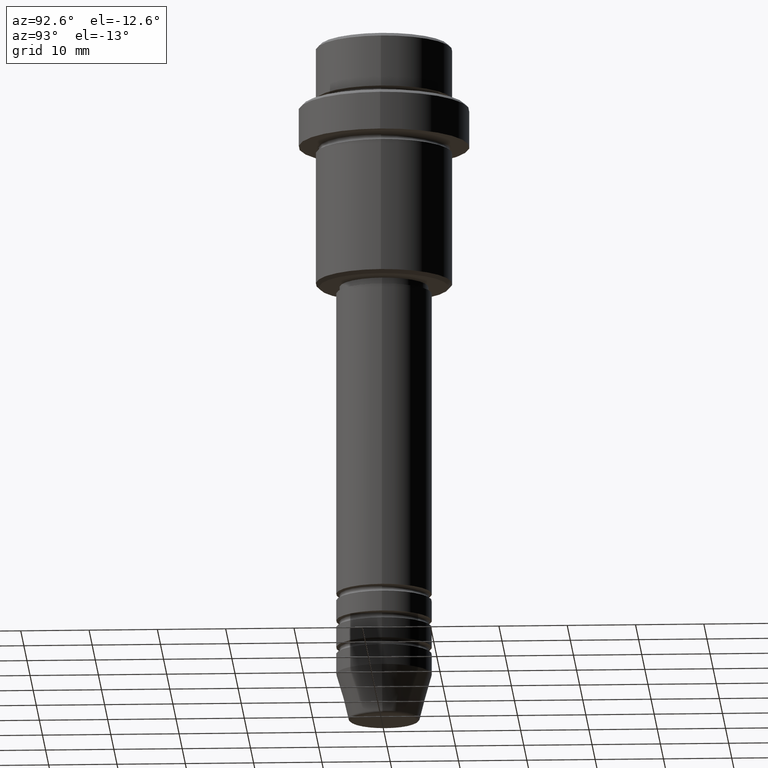
[diagram: clean part render]
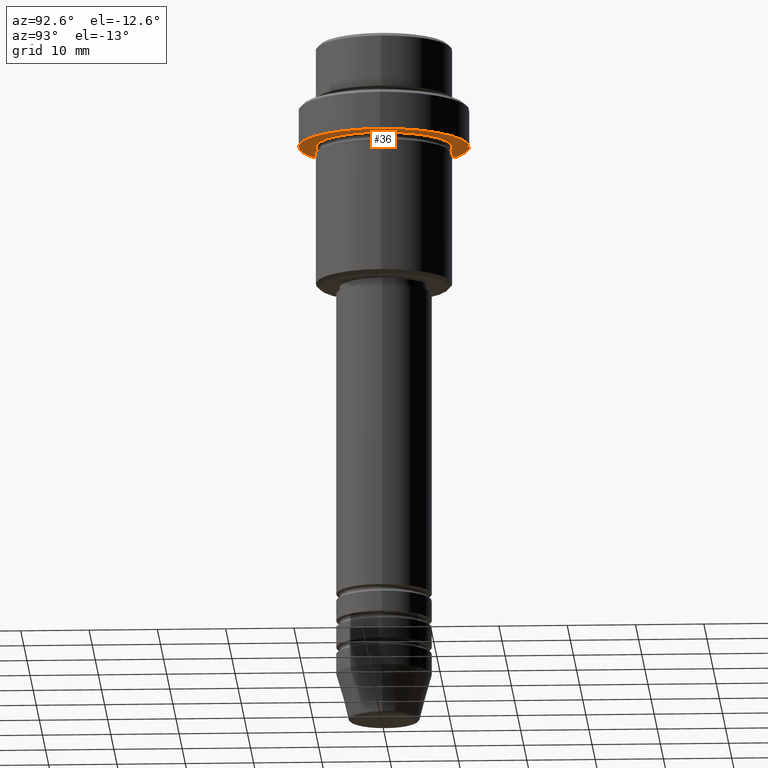
[diagram: same view with one face highlighted and labeled with its STEP entity id]
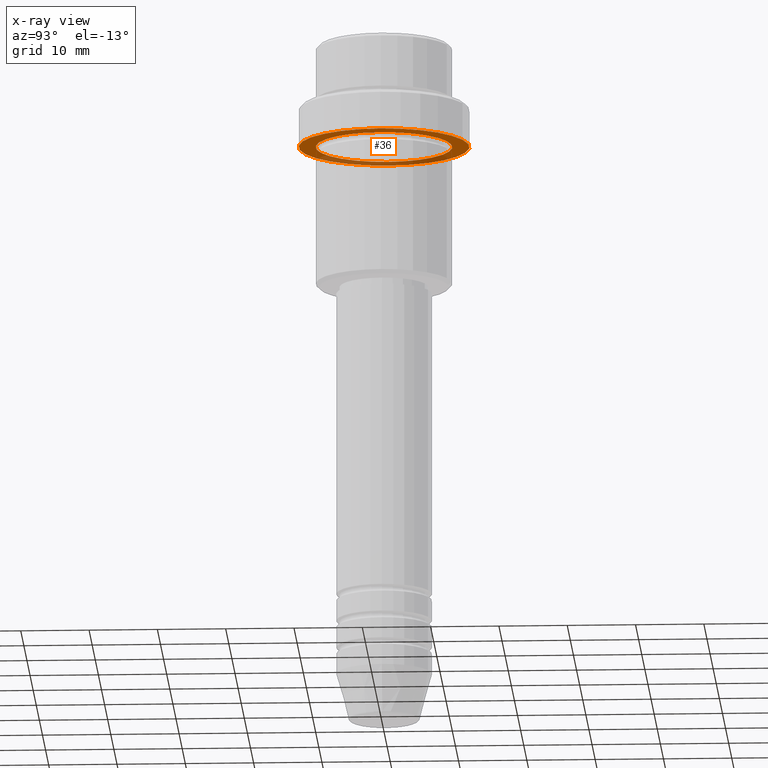
[diagram: x-ray of the same camera — body ghosted, the highlighted face saturated]
A machine part, auxiliary view. The second image highlights one B-rep face of the part: STEP entity #36.
The next image is the same camera in x-ray: the body ghosted, the highlighted face saturated — about 30% of this face is hidden behind the body in this view.
In plain terms, the highlighted planar face has unit normal (0, 0, -1).
Its self-contained STEP definition (entity closure, byte-faithful):
#24 = VERTEX_POINT ( 'NONE', #401 ) ;
#36 = ADVANCED_FACE ( 'NONE', ( #708, #603 ), #505, .T. ) ;
#79 = EDGE_CURVE ( 'NONE', #944, #1074, #1296, .T. ) ;
#88 = AXIS2_PLACEMENT_3D ( 'NONE', #378, #806, #130 ) ;
#130 = DIRECTION ( 'NONE',  ( 1.000000000000000000, 0.000000000000000000, 0.000000000000000000 ) ) ;
#153 = AXIS2_PLACEMENT_3D ( 'NONE', #849, #202, #858 ) ;
#174 = VERTEX_POINT ( 'NONE', #553 ) ;
#202 = DIRECTION ( 'NONE',  ( -0.000000000000000000, -0.000000000000000000, 1.000000000000000000 ) ) ;
#226 = CIRCLE ( 'NONE', #88, 12.50000000000000000 ) ;
#302 = DIRECTION ( 'NONE',  ( -0.000000000000000000, -0.000000000000000000, 1.000000000000000000 ) ) ;
#306 = EDGE_LOOP ( 'NONE', ( #525, #739 ) ) ;
#309 = CARTESIAN_POINT ( 'NONE',  ( 0.000000000000000000, 0.000000000000000000, -15.00000000000000000 ) ) ;
#378 = CARTESIAN_POINT ( 'NONE',  ( 0.000000000000000000, 0.000000000000000000, -15.00000000000000000 ) ) ;
#386 = CIRCLE ( 'NONE', #1275, 9.999999999999992895 ) ;
#398 = DIRECTION ( 'NONE',  ( -1.000000000000000000, 0.000000000000000000, 0.000000000000000000 ) ) ;
#401 = CARTESIAN_POINT ( 'NONE',  ( -9.999999999999992895, 0.000000000000000000, -15.00000000000000000 ) ) ;
#505 = PLANE ( 'NONE',  #737 ) ;
#507 = DIRECTION ( 'NONE',  ( -0.000000000000000000, -0.000000000000000000, 1.000000000000000000 ) ) ;
#525 = ORIENTED_EDGE ( 'NONE', *, *, #868, .T. ) ;
#547 = AXIS2_PLACEMENT_3D ( 'NONE', #309, #302, #744 ) ;
#553 = CARTESIAN_POINT ( 'NONE',  ( 9.999999999999992895, 1.224646799147352468E-15, -15.00000000000000000 ) ) ;
#603 = FACE_OUTER_BOUND ( 'NONE', #1266, .T. ) ;
#708 = FACE_BOUND ( 'NONE', #306, .T. ) ;
#734 = DIRECTION ( 'NONE',  ( -1.000000000000000000, 0.000000000000000000, -0.000000000000000000 ) ) ;
#737 = AXIS2_PLACEMENT_3D ( 'NONE', #1043, #934, #734 ) ;
#739 = ORIENTED_EDGE ( 'NONE', *, *, #1034, .T. ) ;
#744 = DIRECTION ( 'NONE',  ( -1.000000000000000000, 0.000000000000000000, 0.000000000000000000 ) ) ;
#806 = DIRECTION ( 'NONE',  ( -0.000000000000000000, -0.000000000000000000, 1.000000000000000000 ) ) ;
#849 = CARTESIAN_POINT ( 'NONE',  ( 0.000000000000000000, 0.000000000000000000, -15.00000000000000000 ) ) ;
#858 = DIRECTION ( 'NONE',  ( 1.000000000000000000, 0.000000000000000000, 0.000000000000000000 ) ) ;
#868 = EDGE_CURVE ( 'NONE', #24, #174, #386, .T. ) ;
#903 = CIRCLE ( 'NONE', #547, 9.999999999999992895 ) ;
#934 = DIRECTION ( 'NONE',  ( 0.000000000000000000, 0.000000000000000000, -1.000000000000000000 ) ) ;
#944 = VERTEX_POINT ( 'NONE', #1086 ) ;
#1034 = EDGE_CURVE ( 'NONE', #174, #24, #903, .T. ) ;
#1043 = CARTESIAN_POINT ( 'NONE',  ( 0.000000000000000000, 12.50000000000000000, -15.00000000000000000 ) ) ;
#1072 = CARTESIAN_POINT ( 'NONE',  ( -12.50000000000000000, 1.530808498934191521E-15, -15.00000000000000000 ) ) ;
#1074 = VERTEX_POINT ( 'NONE', #1072 ) ;
#1086 = CARTESIAN_POINT ( 'NONE',  ( 12.50000000000000000, 0.000000000000000000, -15.00000000000000000 ) ) ;
#1255 = ORIENTED_EDGE ( 'NONE', *, *, #79, .F. ) ;
#1263 = ORIENTED_EDGE ( 'NONE', *, *, #1309, .F. ) ;
#1266 = EDGE_LOOP ( 'NONE', ( #1255, #1263 ) ) ;
#1275 = AXIS2_PLACEMENT_3D ( 'NONE', #1403, #507, #398 ) ;
#1296 = CIRCLE ( 'NONE', #153, 12.50000000000000000 ) ;
#1309 = EDGE_CURVE ( 'NONE', #1074, #944, #226, .T. ) ;
#1403 = CARTESIAN_POINT ( 'NONE',  ( 0.000000000000000000, 0.000000000000000000, -15.00000000000000000 ) ) ;